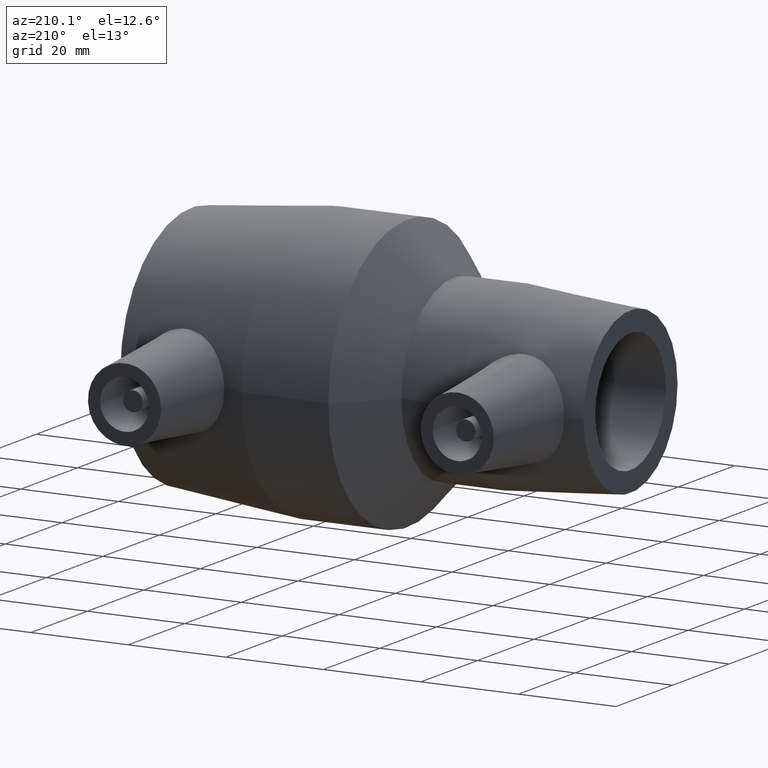
[diagram: clean part render]
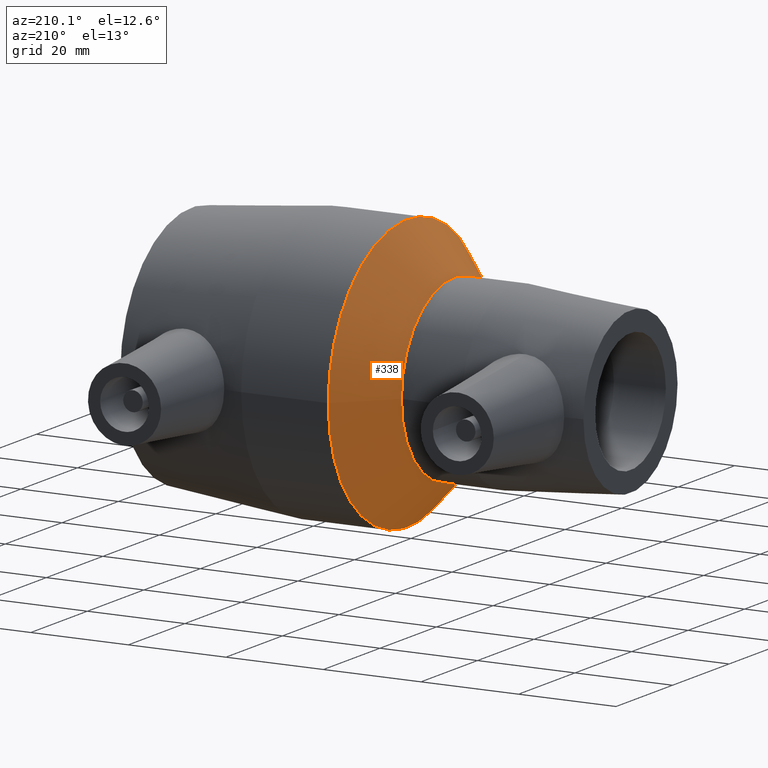
[diagram: same view with one face highlighted and labeled with its STEP entity id]
A machine part, auxiliary view. The second image highlights one B-rep face of the part: STEP entity #338.
In plain terms, the highlighted conical surface has half-angle 45 deg.
Its self-contained STEP definition (entity closure, byte-faithful):
#19=CONICAL_SURFACE('',#383,23.25,45.);
#36=FACE_BOUND('',#123,.T.);
#80=FACE_OUTER_BOUND('',#122,.T.);
#122=EDGE_LOOP('',(#275));
#123=EDGE_LOOP('',(#276));
#170=CIRCLE('',#381,18.5);
#172=CIRCLE('',#384,28.);
#201=VERTEX_POINT('',#648);
#203=VERTEX_POINT('',#653);
#232=EDGE_CURVE('',#201,#201,#170,.T.);
#234=EDGE_CURVE('',#203,#203,#172,.T.);
#275=ORIENTED_EDGE('',*,*,#234,.F.);
#276=ORIENTED_EDGE('',*,*,#232,.T.);
#338=ADVANCED_FACE('',(#80,#36),#19,.T.);
#381=AXIS2_PLACEMENT_3D('',#649,#466,#467);
#383=AXIS2_PLACEMENT_3D('',#652,#470,#471);
#384=AXIS2_PLACEMENT_3D('',#654,#472,#473);
#466=DIRECTION('center_axis',(1.,1.83697019872103E-16,0.));
#467=DIRECTION('ref_axis',(0.,0.,-1.));
#470=DIRECTION('center_axis',(1.,1.83697019872103E-16,0.));
#471=DIRECTION('ref_axis',(-1.27220423054671E-16,1.,0.));
#472=DIRECTION('center_axis',(1.,1.83697019872103E-16,0.));
#473=DIRECTION('ref_axis',(0.,0.,-1.));
#648=CARTESIAN_POINT('',(-8.75,18.5,0.));
#649=CARTESIAN_POINT('Origin',(-8.75,6.65901697036373E-15,0.));
#652=CARTESIAN_POINT('Origin',(-3.99999999999999,7.53157781475622E-15,0.));
#653=CARTESIAN_POINT('',(0.749999999999997,28.,0.));
#654=CARTESIAN_POINT('Origin',(0.750000000000002,8.40413865914871E-15,0.));